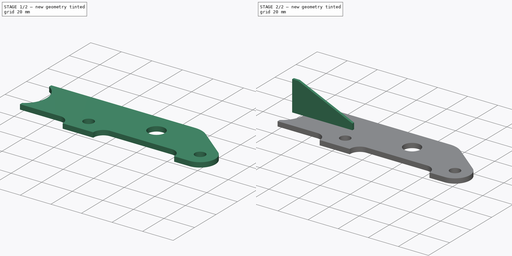
[diagram: build sequence overview — one tinted view per stage of 2, left to right]
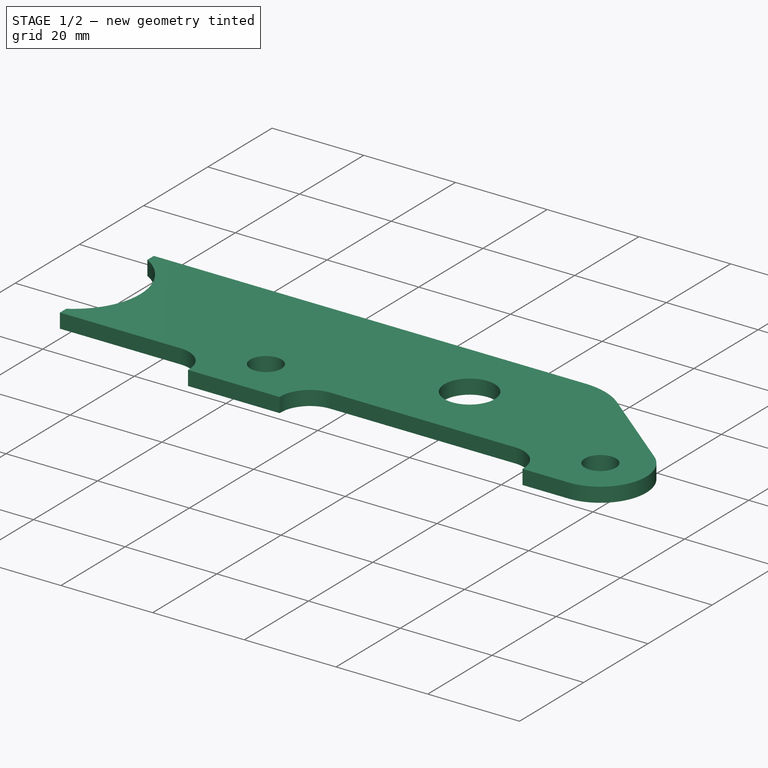
[diagram: stage 1 of 2 — iso view after this stage's code; geometry added in this stage tinted green]
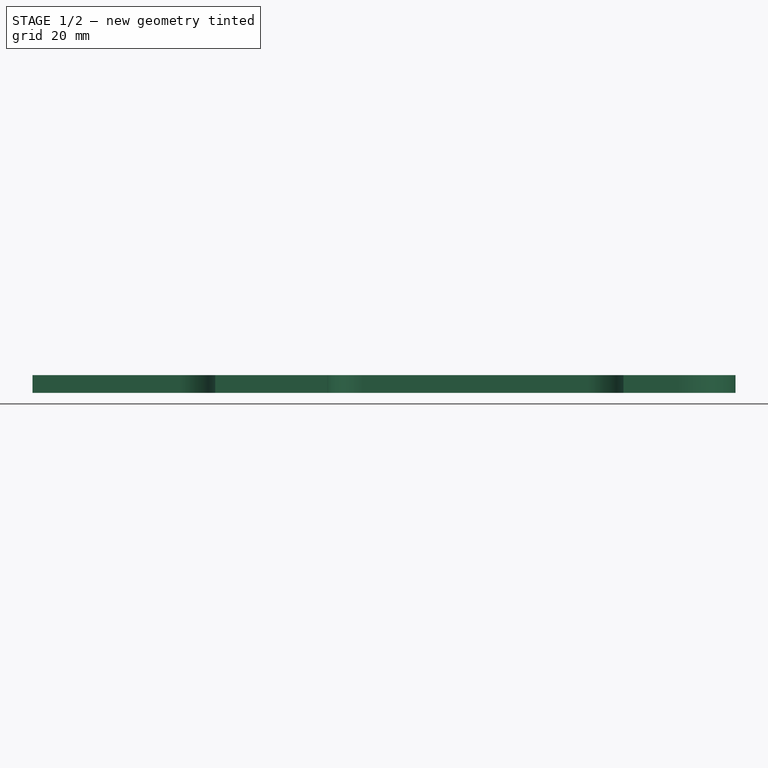
[diagram: stage 1 of 2 — front view after this stage's code; geometry added in this stage tinted green]
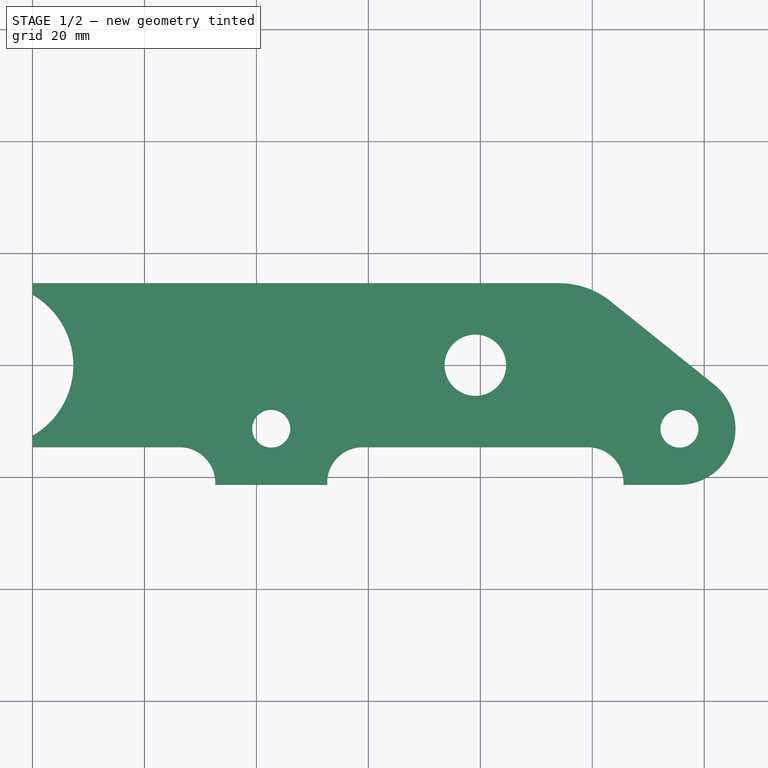
[diagram: stage 1 of 2 — top view after this stage's code; geometry added in this stage tinted green]
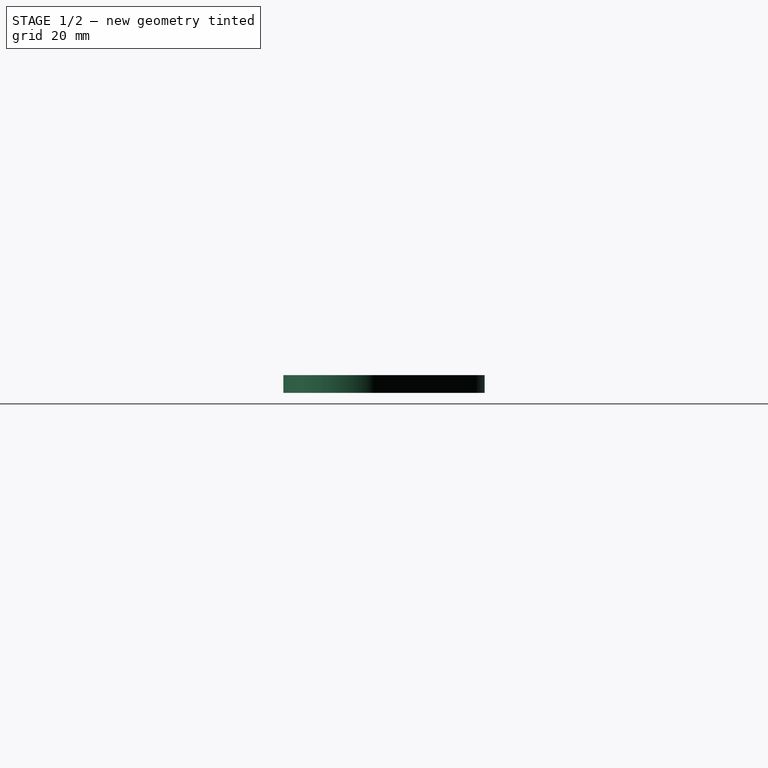
[diagram: stage 1 of 2 — right view after this stage's code; geometry added in this stage tinted green]
FCSTD DOCUMENT  (FreeCAD 0.17R11939 (Git))
Label: lower_stem_tab
License: All rights reserved
LicenseURL: http://en.wikipedia.org/wiki/All_rights_reserved
objects: Sketcher::SketchObject×4, PartDesign::Pad×2, PartDesign::Body×2, Spreadsheet::Sheet×1, PartDesign::Pocket×1, Part::Part2DObjectPython×1
note: 13 computed .brp shape members not serialized (recipe doc carries the construction recipe); baked Part::Feature solids carry a one-line shape summary decoded from their .brp

FEATURE [PartDesign::Body] Body001
  Group = -> [Sketch002,Pad]
  Origin = -> Origin001
  Placement = pos=(7.2898,0,0) rot=(0,0,1;0rad)
  Tip = -> Pad
  expr: Placement.Base.x = Sketch001.Constraints.gusset_pos_x
FEATURE [Sketcher::SketchObject] Sketch001  label="tab_profile"
  expr: Constraints[6] = (50mm + 24mm / 2 + 10mm) * 1.2
  expr: Constraints[30] = 7in / 8 + 0.5mm
  expr: Constraints[23] = (1in + 1in / 8) / 2
  expr: Constraints[0] = 1.25in / 2 - Spreadsheet.kerf
  sketch-geometry (54):
    g0: ArcOfCircle CenterX=-7.2898 CenterY=0 CenterZ=0 NormalX=0 NormalY=0 NormalZ=1 Radius=14.5796 StartAngle=5.23599 EndAngle=7.33038
    g1: LineSegment StartX=0 StartY=14.6263 StartZ=0 EndX=89.1102 EndY=14.6263 EndZ=0
    g2: LineSegment StartX=0 StartY=-14.6263 StartZ=0 EndX=26.2917 EndY=-14.6263 EndZ=0
    g3: Circle CenterX=79.1102 CenterY=0 CenterZ=0 NormalX=0 NormalY=0 NormalZ=1 Radius=2
    g4: LineSegment StartX=0 StartY=12.6263 StartZ=0 EndX=0 EndY=14.6263 EndZ=0
    g5: LineSegment StartX=0 StartY=-14.6263 StartZ=0 EndX=0 EndY=-12.6263 EndZ=0
    g6: LineSegment [constr] StartX=-7.2898 StartY=0 StartZ=0 EndX=0 EndY=12.6263 EndZ=0
    g7: LineSegment [constr] StartX=-7.2898 StartY=0 StartZ=0 EndX=0 EndY=-12.6263 EndZ=0
    g8: Circle CenterX=42.6417 CenterY=-11.3446 CenterZ=0 NormalX=0 NormalY=0 NormalZ=1 Radius=2
    g9: Circle CenterX=115.579 CenterY=-11.3446 CenterZ=0 NormalX=0 NormalY=0 NormalZ=1 Radius=2
    g10: Circle [constr] CenterX=79.1102 CenterY=0 CenterZ=0 NormalX=0 NormalY=0 NormalZ=1 Radius=14.2875
    g11: LineSegment [constr] StartX=65.6999 StartY=-4.92907 StartZ=0 EndX=-2.9001 EndY=38.7739 EndZ=0
    g12: LineSegment [constr] StartX=77.91 StartY=14.237 StartZ=0 EndX=9.31004 EndY=57.94 EndZ=0
    g13: LineSegment [constr] StartX=-2.9001 StartY=38.7739 StartZ=0 EndX=9.31004 EndY=57.94 EndZ=0
    g14: LineSegment [constr] StartX=79.1102 StartY=0 StartZ=0 EndX=3.20497 EndY=48.357 EndZ=0
    g15: LineSegment [constr] StartX=80.3104 StartY=14.237 StartZ=0 EndX=148.91 EndY=57.94 EndZ=0
    g16: LineSegment [constr] StartX=92.5205 StartY=-4.92907 StartZ=0 EndX=161.12 EndY=38.7739 EndZ=0
    g17: LineSegment [constr] StartX=79.1102 StartY=0 StartZ=0 EndX=155.015 EndY=48.357 EndZ=0
    g18: LineSegment [constr] StartX=148.91 StartY=57.94 StartZ=0 EndX=161.12 EndY=38.7739 EndZ=0
    g19: LineSegment [constr] StartX=45.1898 StartY=7.54442 StartZ=0 EndX=58.6841 EndY=-1.05237 EndZ=0
    g20: LineSegment [constr] StartX=58.6841 StartY=-1.05237 StartZ=0 EndX=55.8364 EndY=-5.52234 EndZ=0
    g21: LineSegment [constr] StartX=55.8364 StartY=-5.52234 StartZ=0 EndX=42.3421 EndY=3.07445 EndZ=0
    g22: LineSegment [constr] StartX=42.3421 StartY=3.07445 StartZ=0 EndX=45.1898 EndY=7.54442 EndZ=0
    g23: LineSegment [constr] StartX=49.0893 StartY=-1.22395 StartZ=0 EndX=42.6417 EndY=-11.3446 EndZ=0
    g24: LineSegment [constr] StartX=79.1102 StartY=0 StartZ=0 EndX=42.6417 EndY=-11.3446 EndZ=0
    g25: LineSegment [constr] StartX=79.1102 StartY=0 StartZ=0 EndX=115.579 EndY=-11.3446 EndZ=0
    g26: LineSegment [constr] StartX=45.7157 StartY=0.925252 StartZ=0 EndX=29.5967 EndY=-24.3765 EndZ=0
    g27: LineSegment [constr] StartX=29.5967 StartY=-24.3765 StartZ=0 EndX=36.3438 EndY=-28.6749 EndZ=0
    g28: LineSegment [constr] StartX=36.3438 StartY=-28.6749 StartZ=0 EndX=52.4628 EndY=-3.37315 EndZ=0
    g29: LineSegment [constr] StartX=34.4324 StartY=-16.786 StartZ=0 EndX=41.1795 EndY=-21.0844 EndZ=0
    g30: LineSegment [constr] StartX=37.6562 StartY=-11.7256 StartZ=0 EndX=44.4033 EndY=-16.024 EndZ=0
    g31: LineSegment [constr] StartX=47.6271 StartY=-10.9637 StartZ=0 EndX=40.88 EndY=-6.66527 EndZ=0
    g32: LineSegment [constr] StartX=44.4033 StartY=-16.024 StartZ=0 EndX=40.88 EndY=-6.66527 EndZ=0
    g33: LineSegment [constr] StartX=7.2898 StartY=0 StartZ=0 EndX=47.2898 EndY=0 EndZ=0
    g34: Circle [constr] CenterX=42.6417 CenterY=-11.3446 CenterZ=0 NormalX=0 NormalY=0 NormalZ=1 Radius=4
    g35: LineSegment [constr] StartX=115.579 StartY=-11.3446 StartZ=0 EndX=42.6417 EndY=-11.3446 EndZ=0
    g36: Circle [constr] CenterX=79.1102 CenterY=0 CenterZ=0 NormalX=0 NormalY=0 NormalZ=1 Radius=4
    g37: LineSegment [constr] StartX=58.6841 StartY=-1.05237 StartZ=0 EndX=58.9527 EndY=-0.630673 EndZ=0
    g38: GeomPoint X=67.0602 Y=7.67667 Z=0
    g39: LineSegment StartX=32.6417 StartY=-20.9763 StartZ=0 EndX=32.6417 EndY=-21.3446 EndZ=0
    g40: LineSegment StartX=32.6417 StartY=-21.3446 StartZ=0 EndX=52.6417 EndY=-21.3446 EndZ=0
    g41: LineSegment StartX=52.6417 StartY=-21.3446 StartZ=0 EndX=52.6417 EndY=-20.9763 EndZ=0
    g42: LineSegment StartX=58.9917 StartY=-14.6263 StartZ=0 EndX=99.2287 EndY=-14.6263 EndZ=0
    g43: LineSegment StartX=105.579 StartY=-21.3446 StartZ=0 EndX=115.579 EndY=-21.3446 EndZ=0
    g44: LineSegment [constr] StartX=32.6417 StartY=-14.6263 StartZ=0 EndX=52.6417 EndY=-14.6263 EndZ=0
    g45: LineSegment StartX=105.579 StartY=-20.9763 StartZ=0 EndX=105.579 EndY=-21.3446 EndZ=0
    g46: ArcOfCircle CenterX=26.2917 CenterY=-20.9763 CenterZ=0 NormalX=0 NormalY=0 NormalZ=1 Radius=6.35 StartAngle=0 EndAngle=1.5708
    g47: ArcOfCircle CenterX=58.9917 CenterY=-20.9763 CenterZ=0 NormalX=0 NormalY=0 NormalZ=1 Radius=6.35 StartAngle=1.5708 EndAngle=3.14159
    g48: LineSegment [constr] StartX=32.6417 StartY=-20.9763 StartZ=0 EndX=32.6417 EndY=-14.6263 EndZ=0
    g49: LineSegment [constr] StartX=52.6417 StartY=-20.9763 StartZ=0 EndX=52.6417 EndY=-14.6263 EndZ=0
    g50: ArcOfCircle CenterX=99.2287 CenterY=-20.9763 CenterZ=0 NormalX=0 NormalY=0 NormalZ=1 Radius=6.35 StartAngle=0 EndAngle=1.5708
    g51: LineSegment StartX=120.944 StartY=-2.90556 StartZ=0 EndX=96.9571 EndY=12.3432 EndZ=0
    g52: ArcOfCircle CenterX=89.1102 CenterY=0 CenterZ=0 NormalX=0 NormalY=0 NormalZ=1 Radius=14.6263 StartAngle=1.00452 EndAngle=1.5708
    g53: ArcOfCircle CenterX=115.579 CenterY=-11.3446 CenterZ=0 NormalX=0 NormalY=0 NormalZ=1 Radius=10 StartAngle=4.71239 EndAngle=7.28771
  constraints (156):
    c: Radius(g0) = 14.5796
    c: PointOnObject(g0,g-1)
    c: Horizontal(g1)
    c: Horizontal(g2)
    c: PointOnObject(g3,g-1)
    c: Radius(g3) = 2
    c: Distance(g3,g0) = 86.4
    c: Vertical(g4)
    c: Coincident(g0,g4)
    c: Coincident(g1,g4)
    c: Symmetric(g0,g0,g-1)
    c: PointOnObject(g1,g-2)
    c: Coincident(g5,g2)
    c: Coincident(g5,g0)
    c: Vertical(g5)
    c: Equal(g5,g4)
    c: DistanceY(g0,g1) = 2
    c: Coincident(g6,g0)
    c: Coincident(g6,g0)
    c: Coincident(g7,g0)
    c: Coincident(g7,g0)
    c: Angle(g7,g6) = 2.0944
    c: Coincident(g10,g3)
    c: Radius(g10) = 14.2875
    c: PointOnObject(g11,g10)
    c: Parallel(g12,g11)
    c: Coincident(g13,g11)
    c: Coincident(g13,g12)
    c: PointOnObject(g12,g10)
    c: Perpendicular(g13,g11)
    c: Distance(g13) = 22.725
    c: Coincident(g14,g3)
    c: PointOnObject(g14,g13)
    c: Symmetric(g11,g12,g14)
    c: Parallel(g14,g11)
    c: Distance(g14) = 90
    c: Equal(g8,g9)
    c: Radius(g9) = 2
    c: Coincident(g17,g3)
    c: Coincident(g18,g16)
    c: Coincident(g15,g18)
    c: PointOnObject(g17,g18)
    c: Symmetric(g15,g16,g17)
    c: Perpendicular(g15,g18)
    c: Parallel(g15,g16)
    c: Parallel(g17,g15)
    c: Distance(g17) = 90
    c: Equal(g18,g13)
    c: PointOnObject(g15,g10)
    c: PointOnObject(g16,g10)
    c: Angle(g17,g14) = 2.00713
    c: DistanceY(g17,g14) = 0
    c: Coincident(g19,g20)
    c: Coincident(g20,g21)
    c: Coincident(g21,g22)
    c: Coincident(g22,g19)
    c: Perpendicular(g22,g19)
    c: Perpendicular(g20,g19)
    c: Perpendicular(g20,g21)
    c: Distance(g20) = 5.3
    c: Distance(g19) = 16
    c: Parallel(g19,g11)
    c: PointOnObject(g23,g21)
    c: Perpendicular(g21,g23)
    c: Symmetric(g21,g20,g23)
    c: Coincident(g23,g8)
    c: Distance(g19,g11) = 0.5
    c: Coincident(g24,g3)
    c: Coincident(g24,g8)
    c: Coincident(g25,g3)
    c: Coincident(g25,g9)
    c: Equal(g25,g24)
    c: PointOnObject(g26,g21)
    c: Coincident(g27,g26)
    c: Coincident(g28,g27)
    c: Perpendicular(g21,g26)
    c: Perpendicular(g21,g28)
    c: Perpendicular(g28,g27)
    c: Symmetric(g28,g26,g23)
    c: Distance(g27) = 8
    c: Distance(g28) = 30
    c: PointOnObject(g29,g26)
    c: PointOnObject(g29,g28)
    c: PointOnObject(g30,g26)
    c: PointOnObject(g30,g28)
    c: PointOnObject(g31,g28)
    c: PointOnObject(g31,g26)
    c: Perpendicular(g26,g31)
    c: Perpendicular(g26,g30)
    c: Perpendicular(g26,g29)
    c: Distance(g31,g30) = 6
    c: Distance(g29,g30) = 6
    c: Coincident(g32,g31)
    c: PointOnObject(g8,g32)
    c: Coincident(g32,g30)
    c: PointOnObject(g33,g0)
    c: Horizontal(g33)
    c: PointOnObject(g33,g-1)
    c: Distance(g33) = 40  'gusset_length'
    c: Coincident(g34,g8)
    c: Radius(g34) = 4
    c: Symmetric(g26,g26,g30)
    c: Coincident(g35,g9)
    c: Coincident(g35,g8)
    c: Horizontal(g35)
    c: Coincident(g36,g3)
    c: Radius(g36) = 4
    c: Coincident(g37,g19)
    c: Parallel(g37,g20)
    c: PointOnObject(g38,g10)
    c: PointOnObject(g38,g14)
    c: Vertical(g39)
    c: Coincident(g40,g39)
    c: Horizontal(g40)
    c: Coincident(g41,g40)
    c: Vertical(g41)
    c: Horizontal(g42)
    c: Horizontal(g43)
    c: Horizontal(g44)
    c: Coincident(g45,g43)
    c: Vertical(g45)
    c: Distance(g8,g39) = 10
    c: Distance(g8,g41) = 10
    c: Distance(g8,g40) = 10
    c: Distance(g9,g45) = 10
    c: Distance(g9,g43) = 10
    c: Tangent(g39,g46) = 1.5708
    c: Tangent(g2,g46) = 1.5708
    c: Radius(g46) = 6.35
    c: Tangent(g42,g47) = 1.5708
    c: Tangent(g41,g47) = 1.5708
    c: Radius(g47) = 6.35
    c: Coincident(g48,g39)
    c: Coincident(g48,g44)
    c: Vertical(g48)
    c: Coincident(g49,g41)
    c: Coincident(g49,g44)
    c: Vertical(g49)
    c: PointOnObject(g44,g42)
    c: PointOnObject(g44,g2)
    c: Tangent(g42,g50) = 1.5708
    c: Tangent(g45,g50) = 1.5708
    c: Radius(g50) = 6.35
    c: DistanceX(g-1,g33) = 7.2898  'gusset_pos_x'
    c: DistanceY(g39,g1) = 35.9709  'Constraint146'
    c: DistanceY(g-1,g0) = 12.6263
    c: PointOnObject(g37,g11)
    c: Distance(g37,g11) = 8
    c: Tangent(g1,g52) = 1.5708
    c: Tangent(g51,g52) = -1.5708
    c: Tangent(g43,g53) = -1.5708
    c: Coincident(g53,g51)
    c: PointOnObject(g52,g-1)
    c: Coincident(g9,g53)
    c: DistanceX(g3,g1) = 10
    c: Tangent(g53,g51)
FEATURE [PartDesign::Pad] Pad001
  Length = 3.175
  Length2 = 100
  Profile = -> Sketch001
  Reversed = true
  Type = 0
FEATURE [Sketcher::SketchObject] Sketch003
  ExternalGeometry = -> [Pad001]
  MapMode = 5
  Support = -> [Pad001]
  sketch-geometry (3):
    g0: Circle CenterX=79.1102 CenterY=0 CenterZ=0 NormalX=0 NormalY=0 NormalZ=1 Radius=5.5
    g1: Circle CenterX=42.6417 CenterY=-11.3446 CenterZ=0 NormalX=0 NormalY=0 NormalZ=1 Radius=3.4
    g2: Circle CenterX=115.579 CenterY=-11.3446 CenterZ=0 NormalX=0 NormalY=0 NormalZ=1 Radius=3.4
  constraints (5):
    c: Coincident(g1,g-4)
    c: Coincident(g2,g-5)
    c: Radius(g1) = 3.4
    c: Equal(g2,g1)
    c: Radius(g0) = 5.5
FEATURE [PartDesign::Pocket] Pocket
  BaseFeature = -> Pad001
  Length = 5
  Profile = -> Sketch003
  Type = 1
FEATURE [PartDesign::Body] Body
  Group = -> [Sketch001,Pad001,Sketch003,Pocket]
  Origin = -> Origin
  Tip = -> Pocket
FEATURE [Part::Part2DObjectPython] Shape2DView  # Draft 2D object (typed FeaturePython)
  Base = -> Pocket
  FaceNumbers = [3]
  HiddenLines = false
  InPlace = true
  Projection = (0,0,1)
  ProjectionMode = 0
  SegmentLength = 0.05
  Tessellation = false
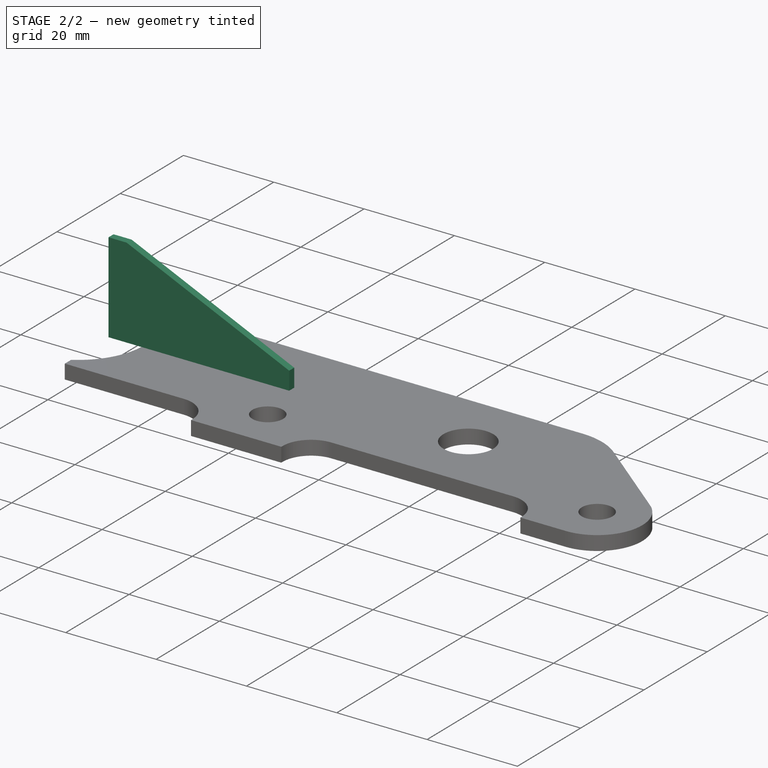
[diagram: stage 2 of 2 — iso view after this stage's code; geometry added in this stage tinted green]
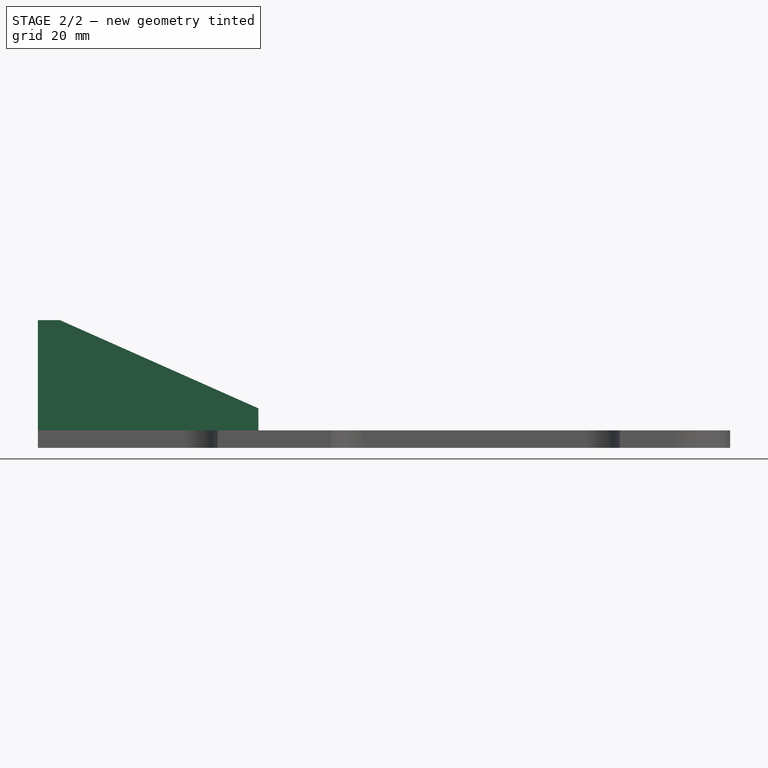
[diagram: stage 2 of 2 — front view after this stage's code; geometry added in this stage tinted green]
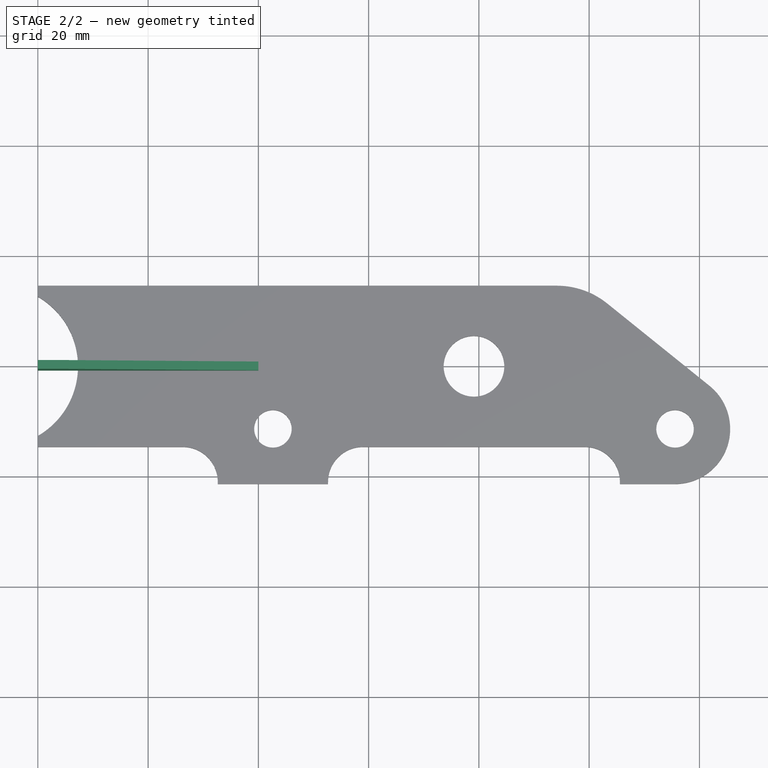
[diagram: stage 2 of 2 — top view after this stage's code; geometry added in this stage tinted green]
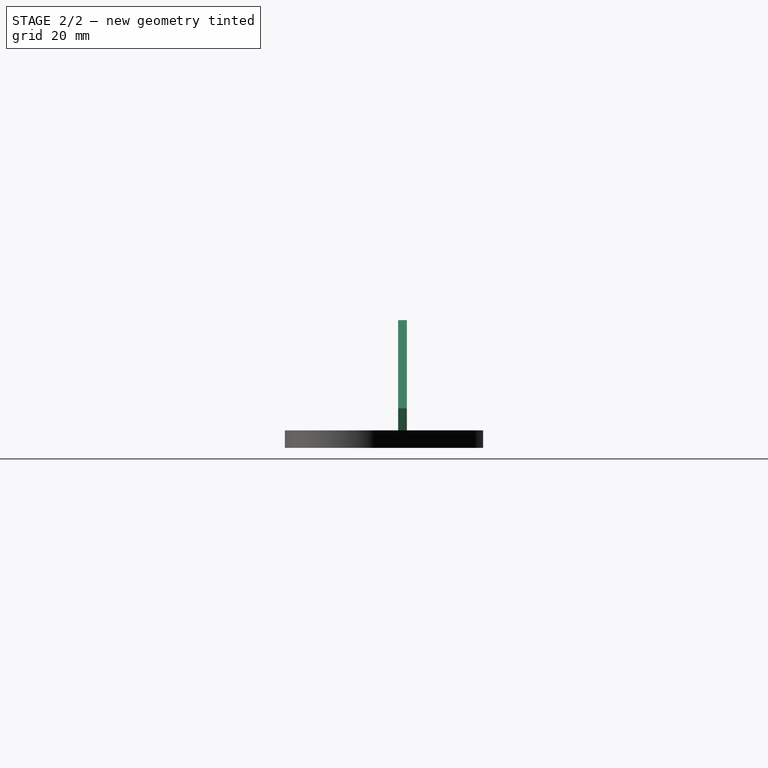
[diagram: stage 2 of 2 — right view after this stage's code; geometry added in this stage tinted green]
FEATURE [Sketcher::SketchObject] Sketch
  expr: Constraints[15] = 25.399999999999999mm + 2 * Spreadsheet.kerf
  expr: Constraints[0] = 1.25in / 2 - Spreadsheet.kerf
  expr: Constraints[31] = Spreadsheet.kerf / 2
  expr: Constraints[42] = Spreadsheet.kerf / 2
  sketch-geometry (17):
    g0: ArcOfCircle CenterX=-8.28705 CenterY=0 CenterZ=0 NormalX=0 NormalY=0 NormalZ=1 Radius=14.5796 StartAngle=5.31695 EndAngle=7.24942
    g1: LineSegment StartX=0 StartY=13.9954 StartZ=0 EndX=81.713 EndY=13.9954 EndZ=0
    g2: LineSegment StartX=1e-12 StartY=-13.9954 StartZ=0 EndX=81.713 EndY=-13.9954 EndZ=0
    g3: Circle [constr] CenterX=81.713 CenterY=0 CenterZ=0 NormalX=0 NormalY=0 NormalZ=1 Radius=5.2
    g4: LineSegment StartX=0 StartY=11.9954 StartZ=0 EndX=0 EndY=13.9954 EndZ=0
    g5: LineSegment StartX=1e-12 StartY=-11.9954 StartZ=0 EndX=1e-12 EndY=-13.9954 EndZ=0
    g6: Circle [constr] CenterX=66.713 CenterY=0 CenterZ=0 NormalX=0 NormalY=0 NormalZ=1 Radius=5.2
    g7: Circle CenterX=66.713 CenterY=0 CenterZ=0 NormalX=0 NormalY=0 NormalZ=1 Radius=4.5523
    g8: Circle CenterX=81.713 CenterY=0 CenterZ=0 NormalX=0 NormalY=0 NormalZ=1 Radius=4.5523
    g9: LineSegment [constr] StartX=66.713 StartY=4.5523 StartZ=0 EndX=66.713 EndY=5.2 EndZ=0
    g10: LineSegment [constr] StartX=81.713 StartY=-4.5523 StartZ=0 EndX=81.713 EndY=-5.2 EndZ=0
    g11: ArcOfCircle [constr] CenterX=81.713 CenterY=0 CenterZ=0 NormalX=0 NormalY=0 NormalZ=1 Radius=13.3477 StartAngle=4.71239 EndAngle=7.85398
    g12: ArcOfCircle CenterX=81.713 CenterY=0 CenterZ=0 NormalX=0 NormalY=0 NormalZ=1 Radius=13.9954 StartAngle=4.71239 EndAngle=7.85398
    g13: LineSegment [constr] StartX=81.713 StartY=13.3477 StartZ=0 EndX=81.713 EndY=13.9954 EndZ=0
    g14: LineSegment [constr] StartX=81.713 StartY=-13.9954 StartZ=0 EndX=81.713 EndY=-13.3477 EndZ=0
    g15: LineSegment [constr] StartX=81.713 StartY=5.2 StartZ=0 EndX=81.713 EndY=13.3477 EndZ=0
    g16: LineSegment [constr] StartX=86.913 StartY=0 StartZ=0 EndX=95.0607 EndY=0 EndZ=0
  constraints (53):
    c: Radius(g0) = 14.5796
    c: PointOnObject(g0,g-1)
    c: Horizontal(g1)
    c: Horizontal(g2)
    c: PointOnObject(g3,g-1)
    c: Radius(g3) = 5.2
    c: Distance(g3,g0) = 90
    c: Vertical(g4)
    c: Coincident(g0,g4)
    c: Coincident(g1,g4)
    c: Vertical(g5)
    c: Coincident(g0,g5)
    c: Coincident(g2,g5)
    c: Equal(g5,g4)
    c: Symmetric(g0,g0,g-1)
    c: Distance(g1,g2) = 27.9908
    c: Distance(g4) = 2
    c: PointOnObject(g1,g-2)
    c: PointOnObject(g6,g-1)
    c: Equal(g6,g3)
    c: DistanceX(g0,g6) = 75
    c: Coincident(g7,g6)
    c: Coincident(g8,g3)
    c: PointOnObject(g9,g7)
    c: PointOnObject(g9,g6)
    c: Perpendicular(g6,g9)
    c: Vertical(g9)
    c: PointOnObject(g10,g8)
    c: PointOnObject(g10,g3)
    c: Perpendicular(g3,g10)
    c: Vertical(g10)
    c: Distance(g9) = 0.6477
    c: Equal(g10,g9)
    c: Coincident(g11,g3)
    c: Coincident(g12,g3)
    c: Coincident(g12,g1)
    c: Coincident(g12,g2)
    c: Coincident(g13,g1)
    c: Vertical(g13)
    c: Coincident(g14,g2)
    c: Coincident(g11,g14)
    c: Vertical(g14)
    c: Distance(g13) = 0.6477
    c: Coincident(g15,g11)
    c: Vertical(g15)
    c: PointOnObject(g15,g3)
    c: Perpendicular(g3,g15)
    c: PointOnObject(g16,g3)
    c: PointOnObject(g16,g11)
    c: Perpendicular(g11,g16)
    c: Horizontal(g16)
    c: Equal(g15,g16)
    c: Coincident(g11,g13)
FEATURE [Spreadsheet::Sheet] Spreadsheet
  cells = A1=kerf; B1(kerf)==0.050999999999999997in
FEATURE [Sketcher::SketchObject] Sketch002  label="gusset_profile"
  MapMode = 5
  Placement = pos=(0,0,0) rot=(1,0,0;1.5708rad)
  Support = -> [XZ_Plane001]
  expr: Constraints[5] = tab_profile.Constraints.gusset_length
  sketch-geometry (5):
    g0: LineSegment StartX=0 StartY=0 StartZ=0 EndX=0 EndY=20 EndZ=0
    g1: LineSegment StartX=40 StartY=0 StartZ=0 EndX=0 EndY=0 EndZ=0
    g2: LineSegment StartX=40 StartY=4 StartZ=0 EndX=40 EndY=0 EndZ=0
    g3: LineSegment StartX=0 StartY=20 StartZ=0 EndX=4 EndY=20 EndZ=0
    g4: LineSegment StartX=40 StartY=4 StartZ=0 EndX=4 EndY=20 EndZ=0
  constraints (14):
    c: Coincident(g0,g-1)
    c: Vertical(g0)
    c: PointOnObject(g1,g-1)
    c: Coincident(g1,g-1)
    c: Distance(g0) = 20
    c: Distance(g1) = 40
    c: Coincident(g2,g1)
    c: Vertical(g2)
    c: Distance(g2) = 4
    c: Coincident(g3,g0)
    c: Horizontal(g3)
    c: Coincident(g4,g2)
    c: Coincident(g4,g3)
    c: Distance(g3) = 4
FEATURE [PartDesign::Pad] Pad
  Length = 1.5875
  Length2 = 100
  Midplane = true
  Placement = pos=(0,0,0) rot=(1,0,0;1.5708rad)
  Profile = -> Sketch002
  Type = 0
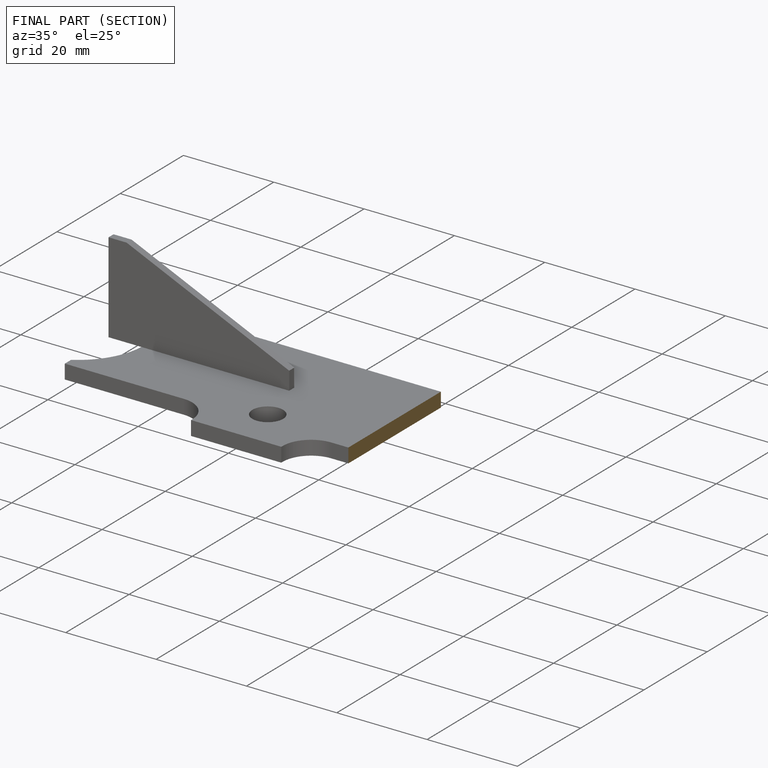
[diagram: finished part — half-section view (interior)]
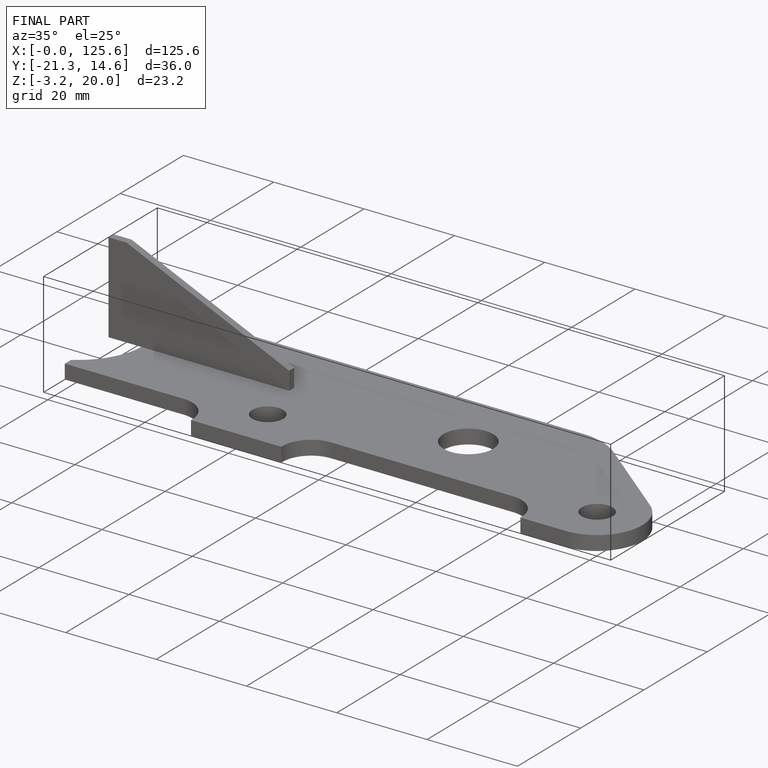
[diagram: finished part — iso view with bounding-box wireframe]
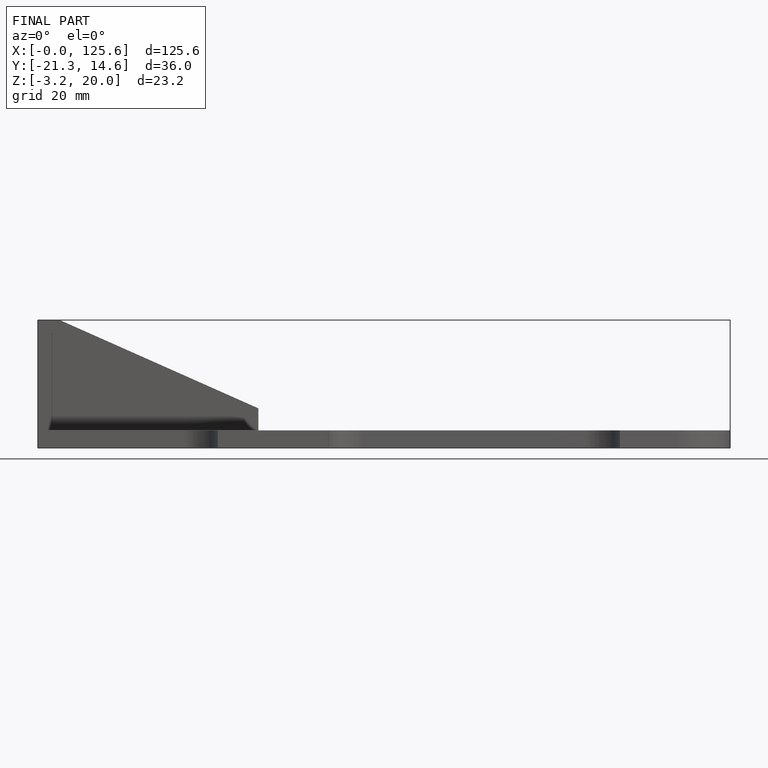
[diagram: finished part — front view with bounding-box wireframe]
